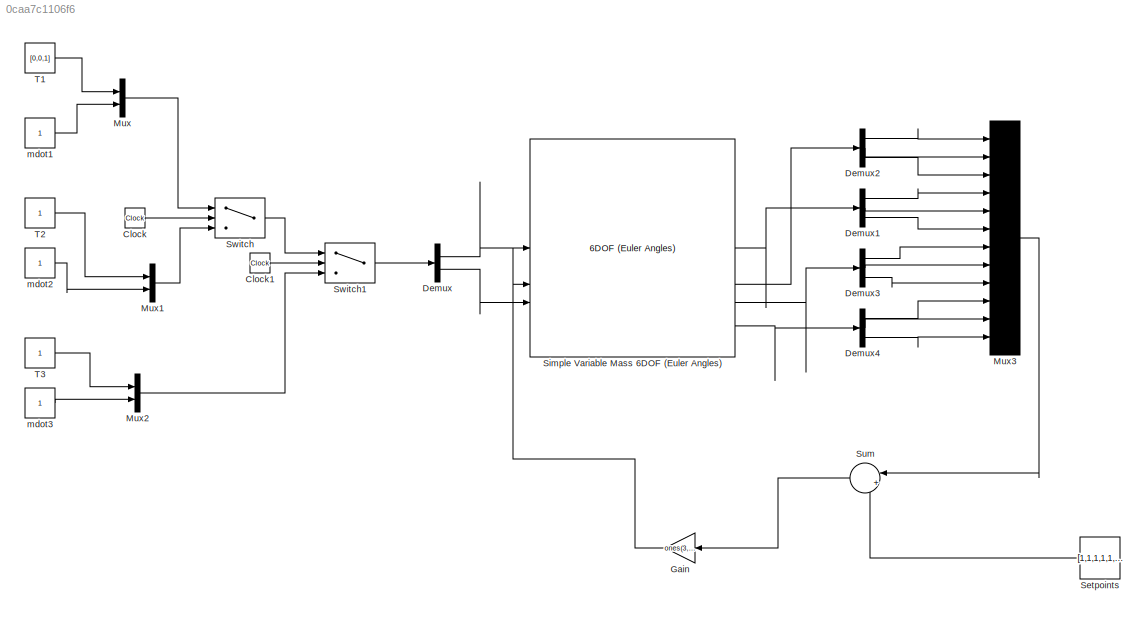
MODEL slx_0caa7c1106f6
KIND model
CONFIG AbsTol = auto
CONFIG EnableMultiTasking = off
CONFIG FixedStep = auto
CONFIG MaxStep = auto
CONFIG MinStep = auto
CONFIG RelTol = 1e-3
CONFIG SampleTimeConstraint = Unconstrained
CONFIG SolverName = VariableStepAuto
CONFIG StartTime = 0.0
CONFIG StopTime = 10.0
BLOCK [Clock] Clock
BLOCK [Clock] Clock1
BLOCK [Demux] Demux
  Outputs = 2
BLOCK [Demux] Demux1
  Outputs = 3
BLOCK [Demux] Demux2
  Outputs = 3
BLOCK [Demux] Demux3
  Outputs = 3
BLOCK [Demux] Demux4
  Outputs = 3
BLOCK [Gain] Gain
  Gain = ones(3,12)
  Multiplication = Matrix(K*u) (u vector)
  NameLocation = top
BLOCK [Mux] Mux
  DisplayOption = bar
  Inputs = 2
BLOCK [Mux] Mux1
  DisplayOption = bar
  Inputs = 2
BLOCK [Mux] Mux2
  DisplayOption = bar
  Inputs = 2
BLOCK [Mux] Mux3
  DisplayOption = bar
  Inputs = 12
BLOCK [Constant] Setpoints
  NameLocation = top
  Value = [1,1,1,1,1,1,1,1,1,1,1,1]
  VectorParams1D = off
BLOCK [Reference] Simple Variable Mass 6DOF (Euler Angles)  REF=shared6dof/6DOF (Euler Angles)
  LibrarySourceBlock = aerolib6dof2/Simple Variable Mass 6DOF (Euler Angles)
  SourceBlock = shared6dof/6DOF (Euler Angles)
  SourceType = 6DOF EoM (Body Axis)
BLOCK [Sum] Sum
  Inputs = |+-
  NameLocation = top
BLOCK [Switch] Switch
  Criteria = u2 > Threshold
  InputSameDT = off
  SaturateOnIntegerOverflow = off
  Threshold = 1
BLOCK [Switch] Switch1
  Criteria = u2 > Threshold
  InputSameDT = off
  SaturateOnIntegerOverflow = off
  Threshold = 1
BLOCK [Constant] T1
  Value = [0,0,1]
BLOCK [Constant] T2
BLOCK [Constant] T3
BLOCK [Constant] mdot1
BLOCK [Constant] mdot2
BLOCK [Constant] mdot3
LINE Clock1:1 -> Switch1:2
LINE Clock:1 -> Switch:2
LINE Demux1:1 -> Mux3:4
LINE Demux1:2 -> Mux3:5
LINE Demux1:3 -> Mux3:6
LINE Demux2:1 -> Mux3:1
LINE Demux2:2 -> Mux3:2
LINE Demux2:3 -> Mux3:3
LINE Demux3:1 -> Mux3:7
LINE Demux3:2 -> Mux3:8
LINE Demux3:3 -> Mux3:9
LINE Demux4:1 -> Mux3:10
LINE Demux4:2 -> Mux3:11
LINE Demux4:3 -> Mux3:12
LINE Demux:1 -> Simple Variable Mass 6DOF (Euler Angles):1
LINE Demux:2 -> Simple Variable Mass 6DOF (Euler Angles):3
LINE Gain:1 -> Simple Variable Mass 6DOF (Euler Angles):2
LINE Mux1:1 -> Switch:3
LINE Mux2:1 -> Switch1:3
LINE Mux3:1 -> Sum:1
LINE Mux:1 -> Switch:1
LINE Setpoints:1 -> Sum:2
LINE Simple Variable Mass 6DOF (Euler Angles):1 -> Demux1:1
LINE Simple Variable Mass 6DOF (Euler Angles):2 -> Demux2:1
LINE Simple Variable Mass 6DOF (Euler Angles):3 -> Demux3:1
LINE Simple Variable Mass 6DOF (Euler Angles):6 -> Demux4:1
LINE Sum:1 -> Gain:1
LINE Switch1:1 -> Demux:1
LINE Switch:1 -> Switch1:1
LINE T1:1 -> Mux:1
LINE T2:1 -> Mux1:1
LINE T3:1 -> Mux2:1
LINE mdot1:1 -> Mux:2
LINE mdot2:1 -> Mux1:2
LINE mdot3:1 -> Mux2:2
